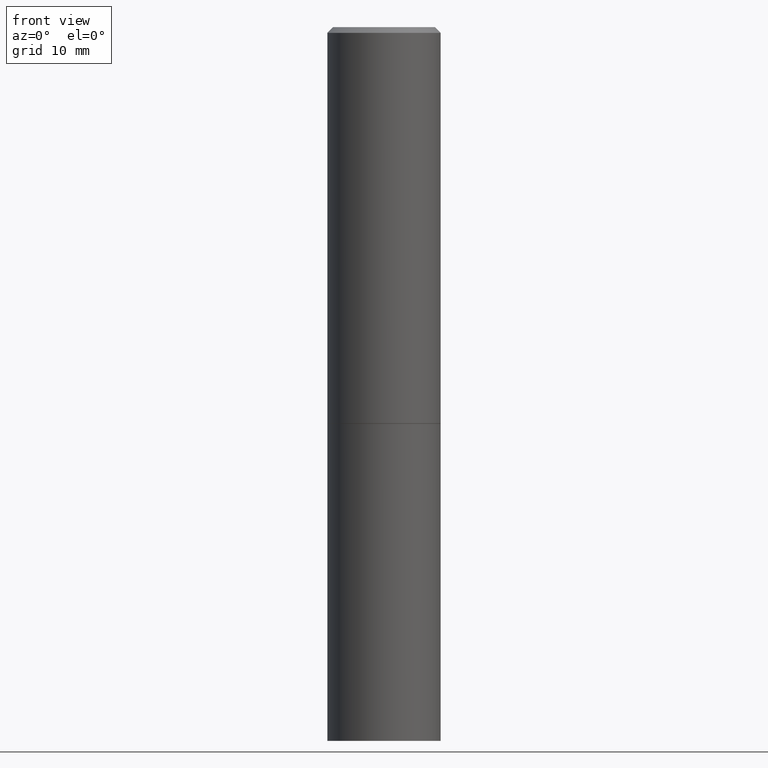
[diagram: clean part render]
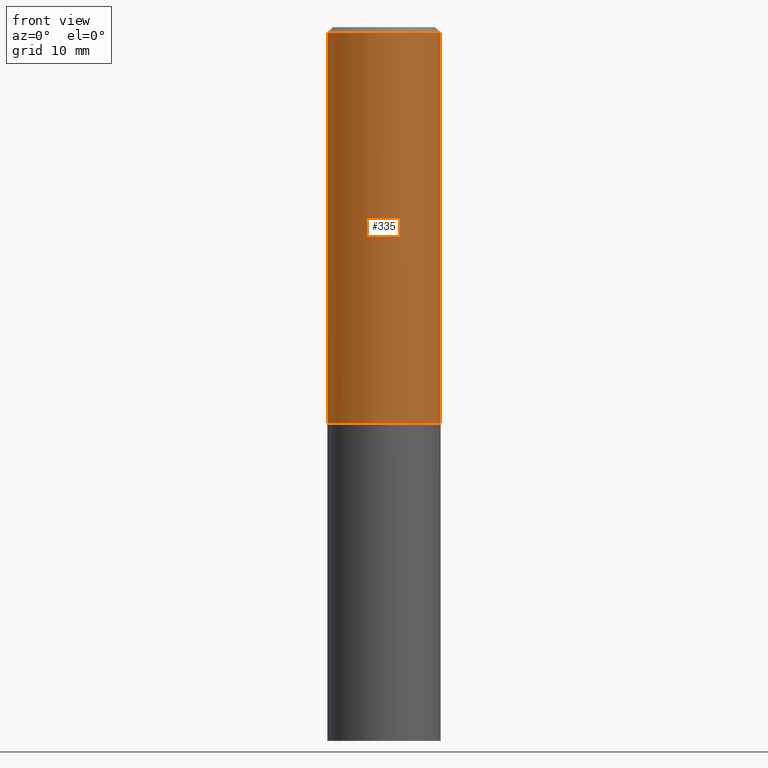
[diagram: same view with one face highlighted and labeled with its STEP entity id]
A machine part, front view. The second image highlights one B-rep face of the part: STEP entity #335.
In plain terms, the highlighted cylindrical surface (partial cylindrical patch) has radius 5 mm, axis along (-0, 0, 1).
Its self-contained STEP definition (entity closure, byte-faithful):
#4 = AXIS2_PLACEMENT_3D ( 'NONE', #13, #215, #325 ) ;
#13 = CARTESIAN_POINT ( 'NONE',  ( 3.367165999236314681E-29, -4.807420655453126643E-15, -1.376900000000000013 ) ) ;
#14 = VECTOR ( 'NONE', #312, 39.37007874015748143 ) ;
#17 = CYLINDRICAL_SURFACE ( 'NONE', #230, 0.1968499999999998307 ) ;
#30 = EDGE_CURVE ( 'NONE', #74, #298, #266, .T. ) ;
#44 = DIRECTION ( 'NONE',  ( 1.000000000000000000, -6.982962677686266711E-15, 0.000000000000000000 ) ) ;
#49 = DIRECTION ( 'NONE',  ( -2.445468806185136597E-29, 3.491481338843145583E-15, 1.000000000000000000 ) ) ;
#61 = ORIENTED_EDGE ( 'NONE', *, *, #73, .F. ) ;
#69 = VECTOR ( 'NONE', #72, 39.37007874015748143 ) ;
#72 = DIRECTION ( 'NONE',  ( -2.445468806185136877E-29, 3.491481338843145188E-15, 1.000000000000000000 ) ) ;
#73 = EDGE_CURVE ( 'NONE', #332, #192, #80, .T. ) ;
#74 = VERTEX_POINT ( 'NONE', #352 ) ;
#80 = CIRCLE ( 'NONE', #296, 0.1968499999999997752 ) ;
#146 = EDGE_CURVE ( 'NONE', #298, #192, #283, .T. ) ;
#157 = ORIENTED_EDGE ( 'NONE', *, *, #30, .T. ) ;
#167 = ORIENTED_EDGE ( 'NONE', *, *, #301, .F. ) ;
#178 = CARTESIAN_POINT ( 'NONE',  ( 0.1968499999999998307, -1.374596203102540425E-15, 9.598753983154291049E-30 ) ) ;
#190 = CARTESIAN_POINT ( 'NONE',  ( 4.890937612370283668E-31, -6.982962677686305168E-17, -0.02000000000000004205 ) ) ;
#192 = VERTEX_POINT ( 'NONE', #313 ) ;
#215 = DIRECTION ( 'NONE',  ( -2.445468806185136597E-29, 3.491481338843145583E-15, 1.000000000000000000 ) ) ;
#230 = AXIS2_PLACEMENT_3D ( 'NONE', #355, #49, #349 ) ;
#243 = CARTESIAN_POINT ( 'NONE',  ( -0.1968499999999998307, 1.398703375343756013E-15, -9.682923725166775270E-30 ) ) ;
#266 = CIRCLE ( 'NONE', #4, 0.1968499999999999417 ) ;
#276 = FACE_OUTER_BOUND ( 'NONE', #294, .T. ) ;
#283 = LINE ( 'NONE', #178, #69 ) ;
#286 = CARTESIAN_POINT ( 'NONE',  ( 0.1968499999999999417, -6.182016858555667463E-15, -1.376900000000000013 ) ) ;
#294 = EDGE_LOOP ( 'NONE', ( #167, #157, #356, #61 ) ) ;
#296 = AXIS2_PLACEMENT_3D ( 'NONE', #190, #302, #44 ) ;
#298 = VERTEX_POINT ( 'NONE', #286 ) ;
#301 = EDGE_CURVE ( 'NONE', #74, #332, #320, .T. ) ;
#302 = DIRECTION ( 'NONE',  ( -2.445468806185136597E-29, 3.491481338843145583E-15, 1.000000000000000000 ) ) ;
#312 = DIRECTION ( 'NONE',  ( -2.445468806185136877E-29, 3.491481338843145188E-15, 1.000000000000000000 ) ) ;
#313 = CARTESIAN_POINT ( 'NONE',  ( 0.1968499999999997752, -1.420318657638187544E-15, -0.02000000000000004205 ) ) ;
#320 = LINE ( 'NONE', #243, #14 ) ;
#325 = DIRECTION ( 'NONE',  ( 1.000000000000000000, -6.982962677686265922E-15, 0.000000000000000000 ) ) ;
#332 = VERTEX_POINT ( 'NONE', #351 ) ;
#335 = ADVANCED_FACE ( 'NONE', ( #276 ), #17, .T. ) ;
#349 = DIRECTION ( 'NONE',  ( 1.000000000000000000, -6.982962677686266711E-15, 4.876176775795935793E-29 ) ) ;
#351 = CARTESIAN_POINT ( 'NONE',  ( -0.1968499999999997752, 1.304766576325676930E-15, -0.02000000000000004205 ) ) ;
#352 = CARTESIAN_POINT ( 'NONE',  ( -0.1968499999999999417, -1.039921765771237577E-15, -1.376900000000000013 ) ) ;
#355 = CARTESIAN_POINT ( 'NONE',  ( 0.000000000000000000, 0.000000000000000000, 0.000000000000000000 ) ) ;
#356 = ORIENTED_EDGE ( 'NONE', *, *, #146, .T. ) ;